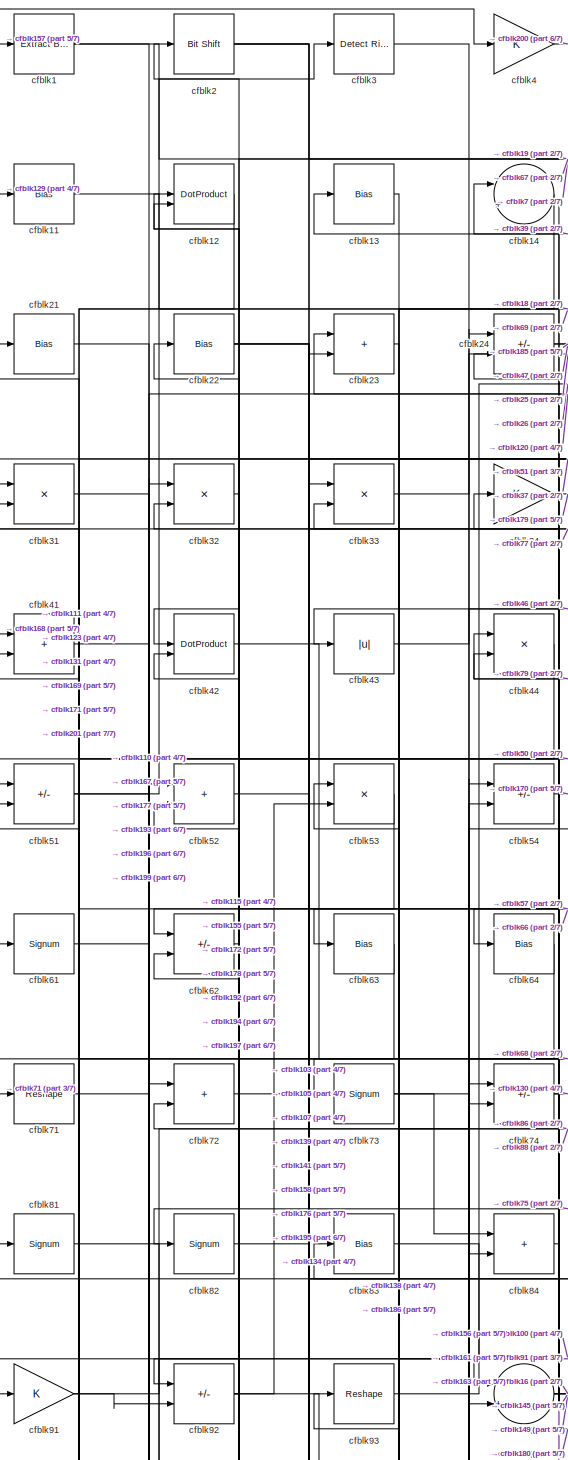
[diagram: root canvas - part 1/7, top left region]
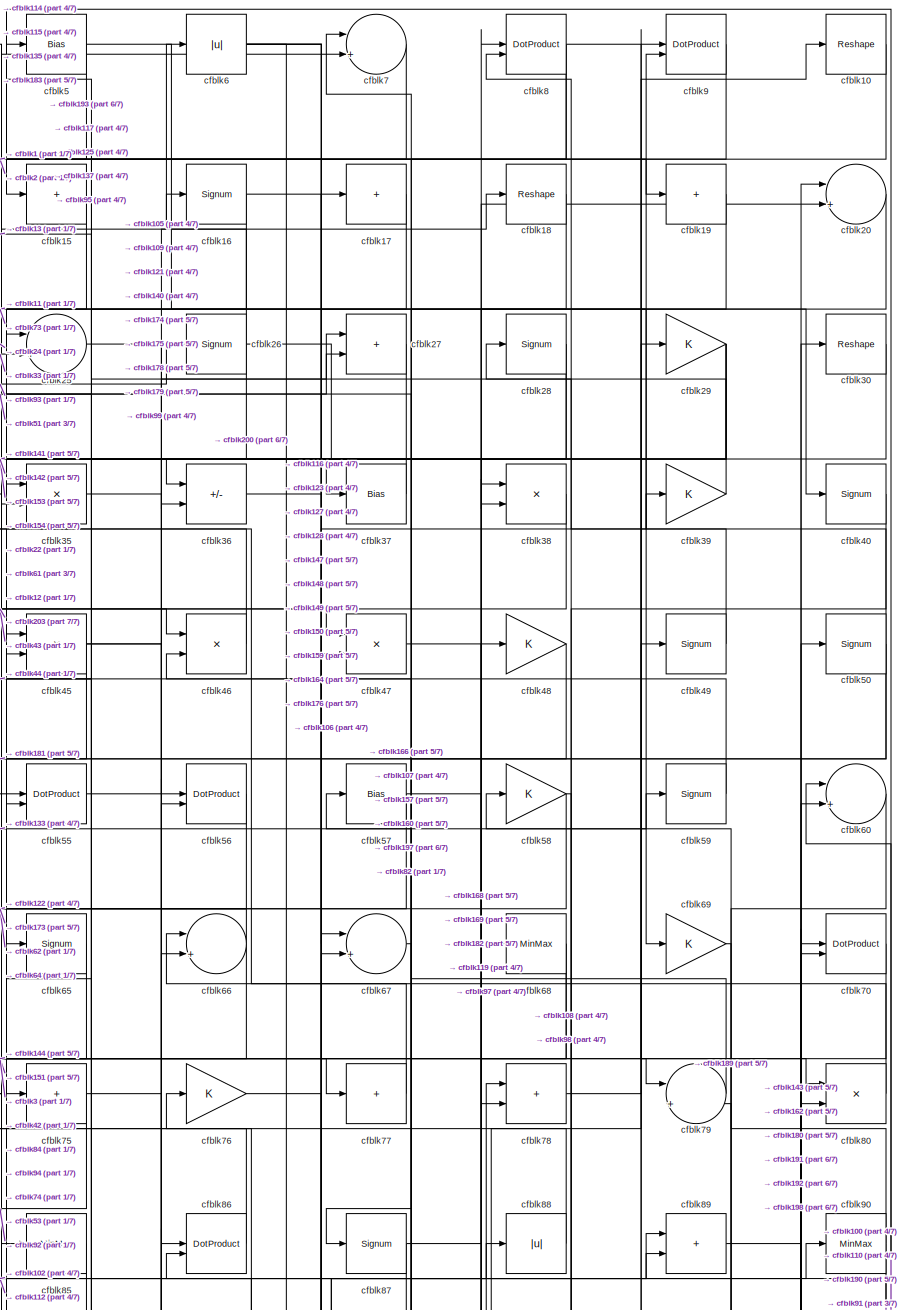
[diagram: root canvas - part 2/7, top right region]
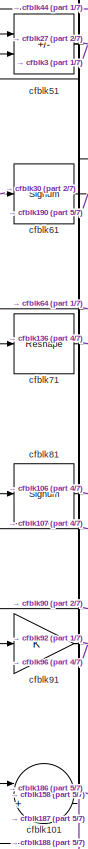
[diagram: root canvas - part 3/7, middle left region]
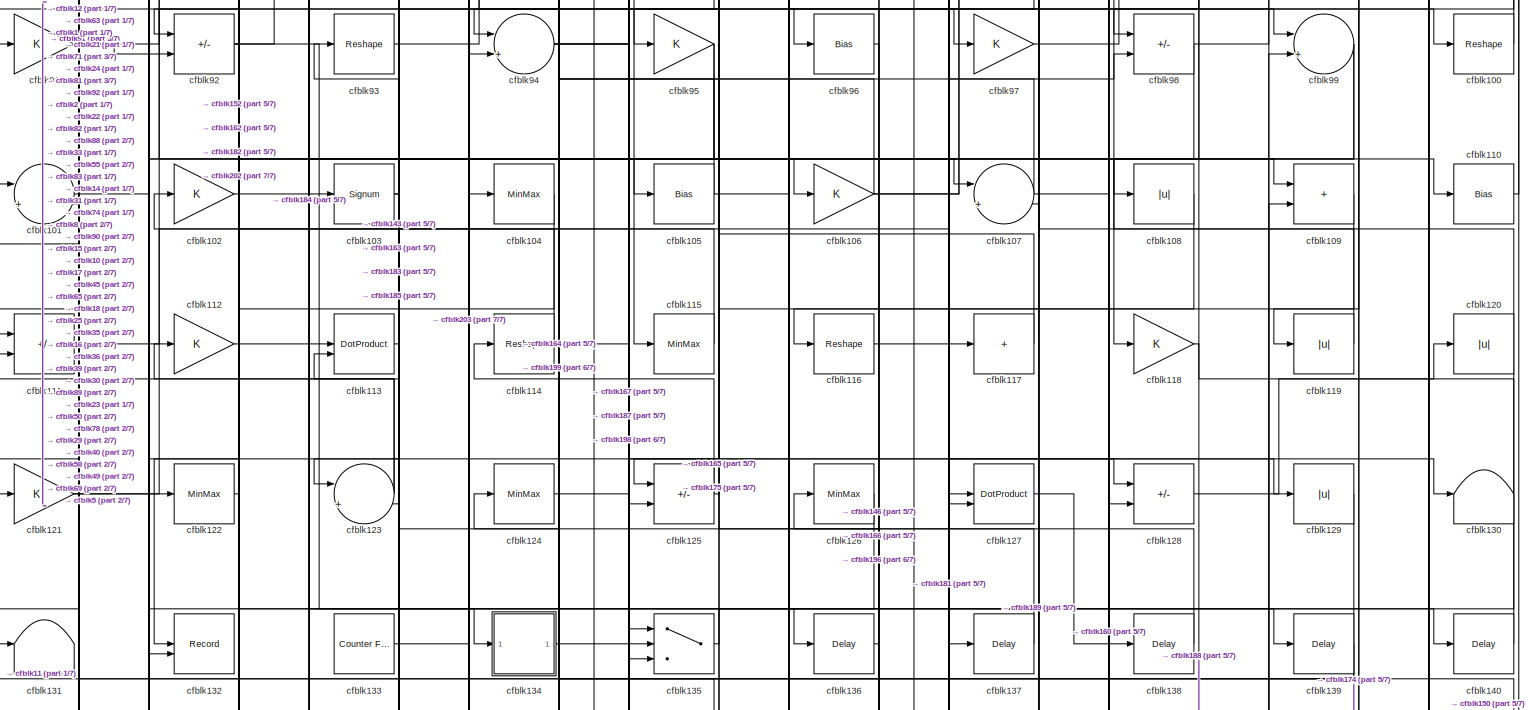
[diagram: root canvas - part 4/7, full width, middle band]
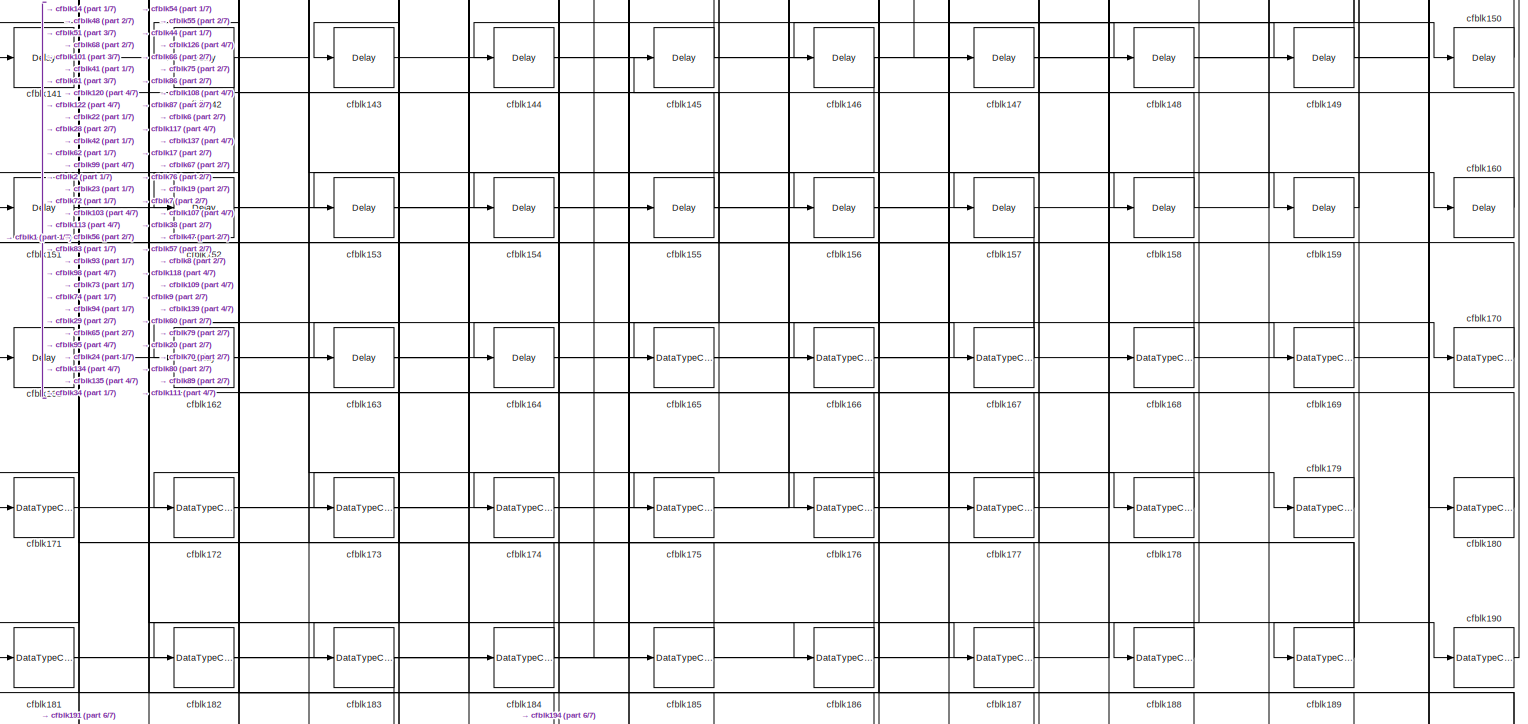
[diagram: root canvas - part 5/7, full width, bottom band]
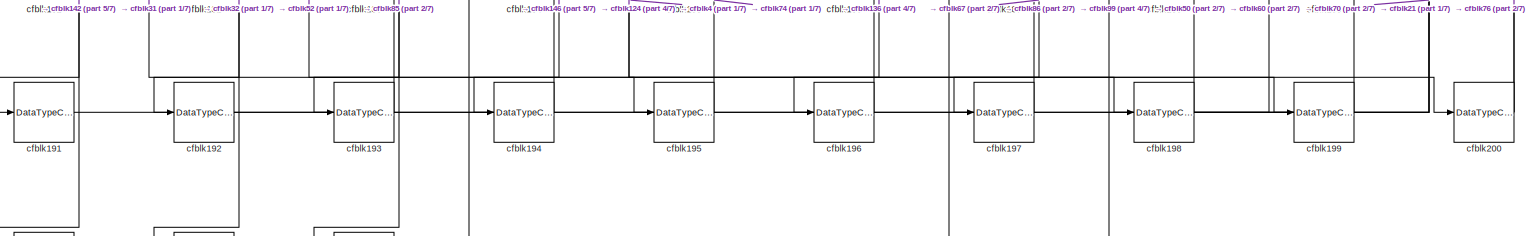
[diagram: root canvas - part 6/7, full width, bottom band]
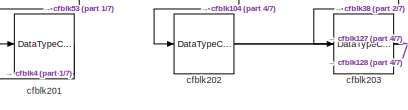
[diagram: root canvas - part 7/7, bottom left region]
MODEL slx_8cbe7dd573b8
KIND model
CONFIG AbsTol = auto
CONFIG EnableMultiTasking = off
CONFIG FixedStep = auto
CONFIG MaxStep = auto
CONFIG MinStep = auto
CONFIG RelTol = 1e-3
CONFIG SampleTimeConstraint = Unconstrained
CONFIG SolverName = VariableStepAuto
CONFIG StartTime = 0.0
CONFIG StopTime = 10.0
BLOCK [Reference] cfblk1  REF=simulink/Logic and Bit
Operations/Extract Bits
  LibrarySourceBlock = hdlsllib/Logic and Bit\nOperations/Extract Bits
  SourceBlock = simulink/Logic and Bit\nOperations/Extract Bits
  SourceType = Extract Bits
BLOCK [Reshape] cfblk10
BLOCK [Reshape] cfblk100
BLOCK [Sum] cfblk101
  Inputs = |++
BLOCK [Gain] cfblk102
BLOCK [Signum] cfblk103
BLOCK [MinMax] cfblk104
BLOCK [Bias] cfblk105
  Bias = 0.0
  SaturateOnIntegerOverflow = off
BLOCK [Gain] cfblk106
BLOCK [Sum] cfblk107
  Inputs = |++
BLOCK [Abs] cfblk108
  SaturateOnIntegerOverflow = off
BLOCK [Sum] cfblk109
  IconShape = rectangular
BLOCK [Bias] cfblk11
  Bias = 0.0
  SaturateOnIntegerOverflow = off
BLOCK [Bias] cfblk110
  Bias = 0.0
  SaturateOnIntegerOverflow = off
BLOCK [Sum] cfblk111
  IconShape = rectangular
  Inputs = +-
BLOCK [Gain] cfblk112
BLOCK [DotProduct] cfblk113
  OutDataTypeStr = Inherit: Inherit via internal rule
BLOCK [Reshape] cfblk114
BLOCK [MinMax] cfblk115
BLOCK [Reshape] cfblk116
BLOCK [Sum] cfblk117
  IconShape = rectangular
  Inputs = +
BLOCK [Gain] cfblk118
BLOCK [Abs] cfblk119
  SaturateOnIntegerOverflow = off
BLOCK [DotProduct] cfblk12
  OutDataTypeStr = Inherit: Inherit via internal rule
BLOCK [Abs] cfblk120
  SaturateOnIntegerOverflow = off
BLOCK [Gain] cfblk121
BLOCK [MinMax] cfblk122
BLOCK [Sum] cfblk123
  Inputs = |++
BLOCK [MinMax] cfblk124
BLOCK [Sum] cfblk125
  IconShape = rectangular
  Inputs = +-
BLOCK [MinMax] cfblk126
BLOCK [DotProduct] cfblk127
  OutDataTypeStr = Inherit: Inherit via internal rule
BLOCK [Sum] cfblk128
  IconShape = rectangular
  Inputs = +-
BLOCK [Abs] cfblk129
  SaturateOnIntegerOverflow = off
BLOCK [Bias] cfblk13
  Bias = 0.0
  SaturateOnIntegerOverflow = off
BLOCK [Terminator] cfblk130
BLOCK [Terminator] cfblk131
BLOCK [Record] cfblk132
  CompatibilityTag = XY
  FileSettingsInternal = {"entries":[{"content":{"excelSettings":{"content":{},"type":"Streamout.ExcelSettings"}},"type":"Streamout.FileSettingStorage","uuid":""}],"packageUris":["http:\/\/schema.mathworks.com\/mf0\/streamout_blocks\/R2020a"],"version":"1.0"}
  Layout = [1 1]
  SignalsInternal = {"entries":[{"content":{"signals":[{"content":{"blockPath":[],"dimensions":[1],"domain":"","lineColor":"#a2142f","plots":[1],"port":1,"signalID":6512,"signalName":"XY Graph:1"},"type":"RecordBlkView.Signal","uuid":""},{"content":{"blockPath":[],"dimensions":[1],"domain":"","lineColor":"#139fff","plots":[1],"port":2,"signalID":6515,"signalName":"XY Graph:2"},"type":"RecordBlkView.Signal","uuid":""}...<+146ch>
  VisualizationBindings = {"xyplotplugin":{"info":[{"series":[{"bindingParametersList":[{"parameter":"X-Axis","signalID":6512,"signalName":"XY Graph:1"},{"parameter":"Y-Axis","signalID":6515,"signalName":"XY Graph:2"}],"seriesID":4843}],"subplotID":1}]}}
  st = -1
BLOCK [Reference] cfblk133  REF=hdlsllib/Sources/Counter
Free-Running
  SourceBlock = hdlsllib/Sources/Counter\nFree-Running
  SourceType = Counter Free-Running
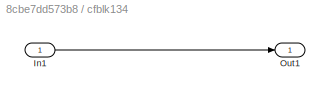
BLOCK [SubSystem] cfblk134
  LibrarySourceBlock = hdlsllib/Ports &\nSubsystems/Subsystem
BLOCK [Inport] cfblk134/In1
BLOCK [Outport] cfblk134/Out1
BLOCK [Switch] cfblk135
  InputSameDT = off
  SaturateOnIntegerOverflow = off
BLOCK [Delay] cfblk136
  InputPortMap = u0
  SampleTime = 1
BLOCK [Delay] cfblk137
  InputPortMap = u0
  SampleTime = 1
BLOCK [Delay] cfblk138
  InputPortMap = u0
  SampleTime = 1
BLOCK [Delay] cfblk139
  InputPortMap = u0
  SampleTime = 1
BLOCK [Sum] cfblk14
  Inputs = |++
BLOCK [Delay] cfblk140
  InputPortMap = u0
  SampleTime = 1
BLOCK [Delay] cfblk141
  InputPortMap = u0
  SampleTime = 1
BLOCK [Delay] cfblk142
  InputPortMap = u0
  SampleTime = 1
BLOCK [Delay] cfblk143
  InputPortMap = u0
  SampleTime = 1
BLOCK [Delay] cfblk144
  InputPortMap = u0
  SampleTime = 1
BLOCK [Delay] cfblk145
  InputPortMap = u0
  SampleTime = 1
BLOCK [Delay] cfblk146
  InputPortMap = u0
  SampleTime = 1
BLOCK [Delay] cfblk147
  InputPortMap = u0
  SampleTime = 1
BLOCK [Delay] cfblk148
  InputPortMap = u0
  SampleTime = 1
BLOCK [Delay] cfblk149
  InputPortMap = u0
  SampleTime = 1
BLOCK [Sum] cfblk15
  IconShape = rectangular
  Inputs = +
BLOCK [Delay] cfblk150
  InputPortMap = u0
  SampleTime = 1
BLOCK [Delay] cfblk151
  InputPortMap = u0
  SampleTime = 1
BLOCK [Delay] cfblk152
  InputPortMap = u0
  SampleTime = 1
BLOCK [Delay] cfblk153
  InputPortMap = u0
  SampleTime = 1
BLOCK [Delay] cfblk154
  InputPortMap = u0
  SampleTime = 1
BLOCK [Delay] cfblk155
  InputPortMap = u0
  SampleTime = 1
BLOCK [Delay] cfblk156
  InputPortMap = u0
  SampleTime = 1
BLOCK [Delay] cfblk157
  InputPortMap = u0
  SampleTime = 1
BLOCK [Delay] cfblk158
  InputPortMap = u0
  SampleTime = 1
BLOCK [Delay] cfblk159
  InputPortMap = u0
  SampleTime = 1
BLOCK [Signum] cfblk16
BLOCK [Delay] cfblk160
  InputPortMap = u0
  SampleTime = 1
BLOCK [Delay] cfblk161
  InputPortMap = u0
  SampleTime = 1
BLOCK [Delay] cfblk162
  InputPortMap = u0
  SampleTime = 1
BLOCK [Delay] cfblk163
  InputPortMap = u0
  SampleTime = 1
BLOCK [Delay] cfblk164
  InputPortMap = u0
  SampleTime = 1
BLOCK [DataTypeConversion] cfblk165
  OutDataTypeStr = uint8
  RndMeth = Floor
  SaturateOnIntegerOverflow = off
BLOCK [DataTypeConversion] cfblk166
  OutDataTypeStr = uint8
  RndMeth = Floor
  SaturateOnIntegerOverflow = off
BLOCK [DataTypeConversion] cfblk167
  RndMeth = Floor
  SaturateOnIntegerOverflow = off
BLOCK [DataTypeConversion] cfblk168
  OutDataTypeStr = uint8
  RndMeth = Floor
  SaturateOnIntegerOverflow = off
BLOCK [DataTypeConversion] cfblk169
  OutDataTypeStr = uint8
  RndMeth = Floor
  SaturateOnIntegerOverflow = off
BLOCK [Sum] cfblk17
  IconShape = rectangular
  Inputs = +
BLOCK [DataTypeConversion] cfblk170
  OutDataTypeStr = uint8
  RndMeth = Floor
  SaturateOnIntegerOverflow = off
BLOCK [DataTypeConversion] cfblk171
  OutDataTypeStr = uint8
  RndMeth = Floor
  SaturateOnIntegerOverflow = off
BLOCK [DataTypeConversion] cfblk172
  OutDataTypeStr = uint8
  RndMeth = Floor
  SaturateOnIntegerOverflow = off
BLOCK [DataTypeConversion] cfblk173
  OutDataTypeStr = uint8
  RndMeth = Floor
  SaturateOnIntegerOverflow = off
BLOCK [DataTypeConversion] cfblk174
  OutDataTypeStr = uint8
  RndMeth = Floor
  SaturateOnIntegerOverflow = off
BLOCK [DataTypeConversion] cfblk175
  OutDataTypeStr = uint8
  RndMeth = Floor
  SaturateOnIntegerOverflow = off
BLOCK [DataTypeConversion] cfblk176
  RndMeth = Floor
  SaturateOnIntegerOverflow = off
BLOCK [DataTypeConversion] cfblk177
  OutDataTypeStr = uint8
  RndMeth = Floor
  SaturateOnIntegerOverflow = off
BLOCK [DataTypeConversion] cfblk178
  OutDataTypeStr = uint8
  RndMeth = Floor
  SaturateOnIntegerOverflow = off
BLOCK [DataTypeConversion] cfblk179
  OutDataTypeStr = uint8
  RndMeth = Floor
  SaturateOnIntegerOverflow = off
BLOCK [Reshape] cfblk18
BLOCK [DataTypeConversion] cfblk180
  OutDataTypeStr = uint8
  RndMeth = Floor
  SaturateOnIntegerOverflow = off
BLOCK [DataTypeConversion] cfblk181
  RndMeth = Floor
  SaturateOnIntegerOverflow = off
BLOCK [DataTypeConversion] cfblk182
  OutDataTypeStr = uint8
  RndMeth = Floor
  SaturateOnIntegerOverflow = off
BLOCK [DataTypeConversion] cfblk183
  RndMeth = Floor
  SaturateOnIntegerOverflow = off
BLOCK [DataTypeConversion] cfblk184
  OutDataTypeStr = uint8
  RndMeth = Floor
  SaturateOnIntegerOverflow = off
BLOCK [DataTypeConversion] cfblk185
  OutDataTypeStr = uint8
  RndMeth = Floor
  SaturateOnIntegerOverflow = off
BLOCK [DataTypeConversion] cfblk186
  OutDataTypeStr = uint8
  RndMeth = Floor
  SaturateOnIntegerOverflow = off
BLOCK [DataTypeConversion] cfblk187
  OutDataTypeStr = uint8
  RndMeth = Floor
  SaturateOnIntegerOverflow = off
BLOCK [DataTypeConversion] cfblk188
  OutDataTypeStr = uint8
  RndMeth = Floor
  SaturateOnIntegerOverflow = off
BLOCK [DataTypeConversion] cfblk189
  RndMeth = Floor
  SaturateOnIntegerOverflow = off
BLOCK [Sum] cfblk19
  IconShape = rectangular
  Inputs = +
BLOCK [DataTypeConversion] cfblk190
  OutDataTypeStr = uint8
  RndMeth = Floor
  SaturateOnIntegerOverflow = off
BLOCK [DataTypeConversion] cfblk191
  OutDataTypeStr = uint8
  RndMeth = Floor
  SaturateOnIntegerOverflow = off
BLOCK [DataTypeConversion] cfblk192
  OutDataTypeStr = uint8
  RndMeth = Floor
  SaturateOnIntegerOverflow = off
BLOCK [DataTypeConversion] cfblk193
  OutDataTypeStr = uint8
  RndMeth = Floor
  SaturateOnIntegerOverflow = off
BLOCK [DataTypeConversion] cfblk194
  OutDataTypeStr = uint8
  RndMeth = Floor
  SaturateOnIntegerOverflow = off
BLOCK [DataTypeConversion] cfblk195
  OutDataTypeStr = uint8
  RndMeth = Floor
  SaturateOnIntegerOverflow = off
BLOCK [DataTypeConversion] cfblk196
  OutDataTypeStr = uint8
  RndMeth = Floor
  SaturateOnIntegerOverflow = off
BLOCK [DataTypeConversion] cfblk197
  OutDataTypeStr = uint8
  RndMeth = Floor
  SaturateOnIntegerOverflow = off
BLOCK [DataTypeConversion] cfblk198
  RndMeth = Floor
  SaturateOnIntegerOverflow = off
BLOCK [DataTypeConversion] cfblk199
  OutDataTypeStr = uint8
  RndMeth = Floor
  SaturateOnIntegerOverflow = off
BLOCK [Reference] cfblk2  REF=hdlsllib/Logic and Bit
Operations/Bit Shift
  SourceBlock = hdlsllib/Logic and Bit\nOperations/Bit Shift
  SourceType = Bit Shift
BLOCK [Sum] cfblk20
  Inputs = |++
BLOCK [DataTypeConversion] cfblk200
  RndMeth = Floor
  SaturateOnIntegerOverflow = off
BLOCK [DataTypeConversion] cfblk201
  OutDataTypeStr = uint8
  RndMeth = Floor
  SaturateOnIntegerOverflow = off
BLOCK [DataTypeConversion] cfblk202
  RndMeth = Floor
  SaturateOnIntegerOverflow = off
BLOCK [DataTypeConversion] cfblk203
  OutDataTypeStr = uint8
  RndMeth = Floor
  SaturateOnIntegerOverflow = off
BLOCK [Bias] cfblk21
  Bias = 0.0
  SaturateOnIntegerOverflow = off
BLOCK [Bias] cfblk22
  Bias = 0.0
  SaturateOnIntegerOverflow = off
BLOCK [Sum] cfblk23
  IconShape = rectangular
BLOCK [Sum] cfblk24
  IconShape = rectangular
  Inputs = +-
BLOCK [Sum] cfblk25
  Inputs = |++
BLOCK [Signum] cfblk26
BLOCK [Sum] cfblk27
  IconShape = rectangular
BLOCK [Signum] cfblk28
BLOCK [Gain] cfblk29
BLOCK [Reference] cfblk3  REF=hdlsllib/Logic and Bit
Operations/Detect Rise
Positive
  SourceBlock = hdlsllib/Logic and Bit\nOperations/Detect Rise\nPositive
  SourceType = Detect Rise Positive
BLOCK [Reshape] cfblk30
BLOCK [Product] cfblk31
  Inputs = */
  RndMeth = Zero
  SaturateOnIntegerOverflow = on
BLOCK [Product] cfblk32
  Inputs = */
  RndMeth = Zero
  SaturateOnIntegerOverflow = on
BLOCK [Product] cfblk33
  Inputs = */
  RndMeth = Zero
  SaturateOnIntegerOverflow = on
BLOCK [Gain] cfblk34
BLOCK [Product] cfblk35
  Inputs = */
  RndMeth = Zero
  SaturateOnIntegerOverflow = on
BLOCK [Sum] cfblk36
  IconShape = rectangular
  Inputs = +-
BLOCK [Bias] cfblk37
  Bias = 0.0
  SaturateOnIntegerOverflow = off
BLOCK [Product] cfblk38
  Inputs = */
  RndMeth = Zero
  SaturateOnIntegerOverflow = on
BLOCK [Gain] cfblk39
BLOCK [Gain] cfblk4
BLOCK [Signum] cfblk40
BLOCK [Sum] cfblk41
  IconShape = rectangular
BLOCK [DotProduct] cfblk42
  OutDataTypeStr = Inherit: Inherit via internal rule
BLOCK [Abs] cfblk43
  SaturateOnIntegerOverflow = off
BLOCK [Product] cfblk44
  Inputs = */
  RndMeth = Zero
  SaturateOnIntegerOverflow = on
BLOCK [Product] cfblk45
  Inputs = */
  RndMeth = Zero
  SaturateOnIntegerOverflow = on
BLOCK [Product] cfblk46
  Inputs = */
  RndMeth = Zero
  SaturateOnIntegerOverflow = on
BLOCK [Product] cfblk47
  Inputs = */
  RndMeth = Zero
  SaturateOnIntegerOverflow = on
BLOCK [Gain] cfblk48
BLOCK [Signum] cfblk49
BLOCK [Bias] cfblk5
  Bias = 0.0
  SaturateOnIntegerOverflow = off
BLOCK [Signum] cfblk50
BLOCK [Sum] cfblk51
  IconShape = rectangular
  Inputs = +-
BLOCK [Sum] cfblk52
  IconShape = rectangular
BLOCK [Product] cfblk53
  Inputs = */
  RndMeth = Zero
  SaturateOnIntegerOverflow = on
BLOCK [Sum] cfblk54
  IconShape = rectangular
  Inputs = +-
BLOCK [DotProduct] cfblk55
  OutDataTypeStr = Inherit: Inherit via internal rule
BLOCK [DotProduct] cfblk56
  OutDataTypeStr = Inherit: Inherit via internal rule
BLOCK [Bias] cfblk57
  Bias = 0.0
  SaturateOnIntegerOverflow = off
BLOCK [Gain] cfblk58
BLOCK [Signum] cfblk59
BLOCK [Abs] cfblk6
  SaturateOnIntegerOverflow = off
BLOCK [Sum] cfblk60
  Inputs = |++
BLOCK [Signum] cfblk61
BLOCK [Sum] cfblk62
  IconShape = rectangular
  Inputs = +-
BLOCK [Bias] cfblk63
  Bias = 0.0
  SaturateOnIntegerOverflow = off
BLOCK [Bias] cfblk64
  Bias = 0.0
  SaturateOnIntegerOverflow = off
BLOCK [Signum] cfblk65
BLOCK [Sum] cfblk66
  Inputs = |++
BLOCK [Sum] cfblk67
  Inputs = |++
BLOCK [MinMax] cfblk68
BLOCK [Gain] cfblk69
BLOCK [Sum] cfblk7
  Inputs = |++
BLOCK [DotProduct] cfblk70
  OutDataTypeStr = Inherit: Inherit via internal rule
BLOCK [Reshape] cfblk71
BLOCK [Sum] cfblk72
  IconShape = rectangular
BLOCK [Signum] cfblk73
BLOCK [Sum] cfblk74
  IconShape = rectangular
  Inputs = +-
BLOCK [Sum] cfblk75
  IconShape = rectangular
  Inputs = +
BLOCK [Gain] cfblk76
BLOCK [Sum] cfblk77
  IconShape = rectangular
  Inputs = +
BLOCK [Sum] cfblk78
  IconShape = rectangular
BLOCK [Sum] cfblk79
  Inputs = |++
BLOCK [DotProduct] cfblk8
  OutDataTypeStr = Inherit: Inherit via internal rule
BLOCK [Product] cfblk80
  Inputs = */
  RndMeth = Zero
  SaturateOnIntegerOverflow = on
BLOCK [Signum] cfblk81
BLOCK [Signum] cfblk82
BLOCK [Bias] cfblk83
  Bias = 0.0
  SaturateOnIntegerOverflow = off
BLOCK [Sum] cfblk84
  IconShape = rectangular
BLOCK [MinMax] cfblk85
BLOCK [DotProduct] cfblk86
  OutDataTypeStr = Inherit: Inherit via internal rule
BLOCK [Signum] cfblk87
BLOCK [Abs] cfblk88
  SaturateOnIntegerOverflow = off
BLOCK [Sum] cfblk89
  IconShape = rectangular
BLOCK [DotProduct] cfblk9
  OutDataTypeStr = Inherit: Inherit via internal rule
BLOCK [MinMax] cfblk90
BLOCK [Gain] cfblk91
BLOCK [Sum] cfblk92
  IconShape = rectangular
  Inputs = +-
BLOCK [Reshape] cfblk93
BLOCK [Sum] cfblk94
  Inputs = |++
BLOCK [Gain] cfblk95
BLOCK [Bias] cfblk96
  Bias = 0.0
  SaturateOnIntegerOverflow = off
BLOCK [Gain] cfblk97
BLOCK [Sum] cfblk98
  IconShape = rectangular
  Inputs = +-
BLOCK [Sum] cfblk99
  Inputs = |++
LINE cfblk100:1 -> cfblk5:1
LINE cfblk101:1 -> cfblk186:1
LINE cfblk102:1 -> cfblk89:1
NET cfblk103:1 -> cfblk123:2, cfblk163:1
LINE cfblk104:1 -> cfblk202:1
NET cfblk105:1 -> cfblk14:2, cfblk18:1
NET cfblk106:1 -> cfblk30:1, cfblk31:2, cfblk89:2
NET cfblk107:1 -> cfblk160:1, cfblk81:1
LINE cfblk108:1 -> cfblk146:1
LINE cfblk109:1 -> cfblk175:1
LINE cfblk10:1 -> cfblk125:1
LINE cfblk110:1 -> cfblk15:1
LINE cfblk111:1 -> cfblk24:1
LINE cfblk112:1 -> cfblk88:1
LINE cfblk113:1 -> cfblk183:1
NET cfblk114:1 -> cfblk102:1, cfblk90:1
LINE cfblk115:1 -> cfblk12:2
LINE cfblk116:1 -> cfblk39:1
LINE cfblk117:1 -> cfblk45:1
LINE cfblk118:1 -> cfblk188:1
LINE cfblk119:1 -> cfblk78:1
LINE cfblk11:1 -> cfblk69:1
NET cfblk120:1 -> cfblk162:1, cfblk23:1
NET cfblk121:1 -> cfblk132:1, cfblk98:2
LINE cfblk122:1 -> cfblk182:1
NET cfblk123:1 -> cfblk112:1, cfblk31:1
LINE cfblk124:1 -> cfblk198:1
NET cfblk125:1 -> cfblk114:1, cfblk45:2
LINE cfblk126:1 -> cfblk165:1
LINE cfblk127:1 -> cfblk138:1
LINE cfblk128:1 -> cfblk120:1
LINE cfblk129:1 -> cfblk11:1
LINE cfblk12:1 -> cfblk131:1
LINE cfblk133:1 -> cfblk55:2
LINE cfblk134/In1:1 -> cfblk134/Out1:1
LINE cfblk134:1 -> cfblk187:1
LINE cfblk135:1 -> cfblk65:1
LINE cfblk136:1 -> cfblk196:1
LINE cfblk137:1 -> cfblk25:1
LINE cfblk138:1 -> cfblk33:1
LINE cfblk139:1 -> cfblk174:1
LINE cfblk13:1 -> cfblk43:1
LINE cfblk140:1 -> cfblk8:2
LINE cfblk141:1 -> cfblk23:2
LINE cfblk142:1 -> cfblk191:1
LINE cfblk143:1 -> cfblk80:2
LINE cfblk144:1 -> cfblk38:1
LINE cfblk145:1 -> cfblk44:2
LINE cfblk146:1 -> cfblk194:1
LINE cfblk147:1 -> cfblk9:1
LINE cfblk148:1 -> cfblk70:2
LINE cfblk149:1 -> cfblk24:2
LINE cfblk14:1 -> cfblk171:1
LINE cfblk150:1 -> cfblk111:2
LINE cfblk151:1 -> cfblk66:2
LINE cfblk152:1 -> cfblk109:2
LINE cfblk153:1 -> cfblk184:1
LINE cfblk154:1 -> cfblk67:2
LINE cfblk155:1 -> cfblk42:2
LINE cfblk156:1 -> cfblk177:1
LINE cfblk157:1 -> cfblk1:1
LINE cfblk158:1 -> cfblk51:2
LINE cfblk159:1 -> cfblk79:2
LINE cfblk15:1 -> cfblk115:1
LINE cfblk160:1 -> cfblk7:1
LINE cfblk161:1 -> cfblk94:2
LINE cfblk162:1 -> cfblk20:1
LINE cfblk163:1 -> cfblk74:2
LINE cfblk164:1 -> cfblk17:1
LINE cfblk165:1 -> cfblk137:1
LINE cfblk166:1 -> cfblk126:1
NET cfblk167:1 -> cfblk135:1, cfblk145:1
LINE cfblk168:1 -> cfblk41:1
LINE cfblk169:1 -> cfblk41:2
NET cfblk16:1 -> cfblk123:1, cfblk128:1
LINE cfblk170:1 -> cfblk83:1
LINE cfblk171:1 -> cfblk54:1
LINE cfblk172:1 -> cfblk54:2
LINE cfblk173:1 -> cfblk8:1
LINE cfblk174:1 -> cfblk56:1
LINE cfblk175:1 -> cfblk56:2
NET cfblk176:1 -> cfblk22:1, cfblk47:2
LINE cfblk177:1 -> cfblk72:1
LINE cfblk178:1 -> cfblk72:2
LINE cfblk179:1 -> cfblk86:1
LINE cfblk17:1 -> cfblk95:1
LINE cfblk180:1 -> cfblk34:1
NET cfblk181:1 -> cfblk117:1, cfblk155:1
LINE cfblk182:1 -> cfblk48:1
NET cfblk183:1 -> cfblk161:1, cfblk55:1
LINE cfblk184:1 -> cfblk113:1
LINE cfblk185:1 -> cfblk113:2
LINE cfblk186:1 -> cfblk93:1
LINE cfblk187:1 -> cfblk101:1
LINE cfblk188:1 -> cfblk101:2
NET cfblk189:1 -> cfblk135:2, cfblk57:1
LINE cfblk18:1 -> cfblk73:1
LINE cfblk190:1 -> cfblk60:1
LINE cfblk191:1 -> cfblk60:2
LINE cfblk192:1 -> cfblk50:1
LINE cfblk193:1 -> cfblk32:1
LINE cfblk194:1 -> cfblk32:2
LINE cfblk195:1 -> cfblk74:1
LINE cfblk196:1 -> cfblk52:1
LINE cfblk197:1 -> cfblk52:2
NET cfblk198:1 -> cfblk70:1, cfblk86:2, cfblk99:2
LINE cfblk199:1 -> cfblk124:1
LINE cfblk19:1 -> cfblk157:1
NET cfblk1:1 -> cfblk129:1, cfblk67:1
NET cfblk200:1 -> cfblk21:1, cfblk76:1
LINE cfblk201:1 -> cfblk4:1
NET cfblk202:1 -> cfblk127:1, cfblk128:2
LINE cfblk203:1 -> cfblk104:1
LINE cfblk20:1 -> cfblk38:2
LINE cfblk21:1 -> cfblk110:1
NET cfblk22:1 -> cfblk107:1, cfblk139:1, cfblk37:1
LINE cfblk23:1 -> cfblk63:1
NET cfblk24:1 -> cfblk185:1, cfblk47:1
LINE cfblk25:1 -> cfblk109:1
NET cfblk26:1 -> cfblk36:2, cfblk68:1, cfblk6:1
LINE cfblk27:1 -> cfblk75:1
NET cfblk28:1 -> cfblk141:1, cfblk142:1
NET cfblk29:1 -> cfblk153:1, cfblk154:1, cfblk36:1
NET cfblk2:1 -> cfblk105:1, cfblk158:1, cfblk19:1
LINE cfblk30:1 -> cfblk61:1
LINE cfblk31:1 -> cfblk199:1
LINE cfblk32:1 -> cfblk192:1
LINE cfblk33:1 -> cfblk25:2
LINE cfblk34:1 -> cfblk179:1
LINE cfblk35:1 -> cfblk140:1
LINE cfblk36:1 -> cfblk127:2
LINE cfblk37:1 -> cfblk35:1
LINE cfblk38:1 -> cfblk203:1
LINE cfblk39:1 -> cfblk13:1
LINE cfblk3:1 -> cfblk77:1
LINE cfblk40:1 -> cfblk98:1
LINE cfblk41:1 -> cfblk167:1
LINE cfblk42:1 -> cfblk79:1
LINE cfblk43:1 -> cfblk46:1
LINE cfblk44:1 -> cfblk51:1
NET cfblk45:1 -> cfblk121:1, cfblk97:1, cfblk99:1
LINE cfblk46:1 -> cfblk12:1
LINE cfblk47:1 -> cfblk168:1
LINE cfblk48:1 -> cfblk181:1
LINE cfblk49:1 -> cfblk28:1
LINE cfblk4:1 -> cfblk200:1
NET cfblk50:1 -> cfblk107:2, cfblk82:1, cfblk9:2
NET cfblk51:1 -> cfblk27:2, cfblk3:1
LINE cfblk52:1 -> cfblk195:1
LINE cfblk53:1 -> cfblk201:1
LINE cfblk54:1 -> cfblk170:1
LINE cfblk55:1 -> cfblk27:1
LINE cfblk56:1 -> cfblk173:1
NET cfblk57:1 -> cfblk169:1, cfblk62:1
NET cfblk58:1 -> cfblk108:1, cfblk122:1
LINE cfblk59:1 -> cfblk46:2
NET cfblk5:1 -> cfblk35:2, cfblk40:1
LINE cfblk60:1 -> cfblk189:1
LINE cfblk61:1 -> cfblk190:1
LINE cfblk62:1 -> cfblk172:1
LINE cfblk63:1 -> cfblk111:1
LINE cfblk64:1 -> cfblk71:1
LINE cfblk65:1 -> cfblk144:1
NET cfblk66:1 -> cfblk64:1, cfblk94:1
LINE cfblk67:1 -> cfblk197:1
NET cfblk68:1 -> cfblk151:1, cfblk84:2
LINE cfblk69:1 -> cfblk119:1
NET cfblk6:1 -> cfblk147:1, cfblk148:1, cfblk149:1, cfblk150:1
LINE cfblk70:1 -> cfblk78:2
LINE cfblk71:1 -> cfblk136:1
LINE cfblk72:1 -> cfblk176:1
NET cfblk73:1 -> cfblk156:1, cfblk84:1
NET cfblk74:1 -> cfblk130:1, cfblk7:2
NET cfblk75:1 -> cfblk178:1, cfblk92:1
LINE cfblk76:1 -> cfblk159:1
LINE cfblk77:1 -> cfblk33:2
LINE cfblk78:1 -> cfblk10:1
LINE cfblk79:1 -> cfblk44:1
LINE cfblk7:1 -> cfblk42:1
LINE cfblk80:1 -> cfblk66:1
LINE cfblk81:1 -> cfblk106:1
LINE cfblk82:1 -> cfblk103:1
LINE cfblk83:1 -> cfblk100:1
LINE cfblk84:1 -> cfblk14:1
LINE cfblk85:1 -> cfblk193:1
LINE cfblk86:1 -> cfblk62:2
NET cfblk87:1 -> cfblk166:1, cfblk20:2
LINE cfblk88:1 -> cfblk53:1
LINE cfblk89:1 -> cfblk180:1
NET cfblk8:1 -> cfblk125:2, cfblk135:3, cfblk80:1
NET cfblk90:1 -> cfblk58:1, cfblk91:1
NET cfblk91:1 -> cfblk92:2, cfblk96:1
NET cfblk92:1 -> cfblk134:1, cfblk2:1, cfblk53:2
LINE cfblk93:1 -> cfblk26:1
NET cfblk94:1 -> cfblk16:1, cfblk59:1, cfblk85:1
NET cfblk95:1 -> cfblk132:2, cfblk164:1
LINE cfblk96:1 -> cfblk116:1
LINE cfblk97:1 -> cfblk29:1
NET cfblk98:1 -> cfblk143:1, cfblk49:1
NET cfblk99:1 -> cfblk118:1, cfblk152:1
LINE cfblk9:1 -> cfblk87:1
note: NET lines group one-source signal fan-out (src -> all destinations, sorted); 1:1 wires keep LINE
